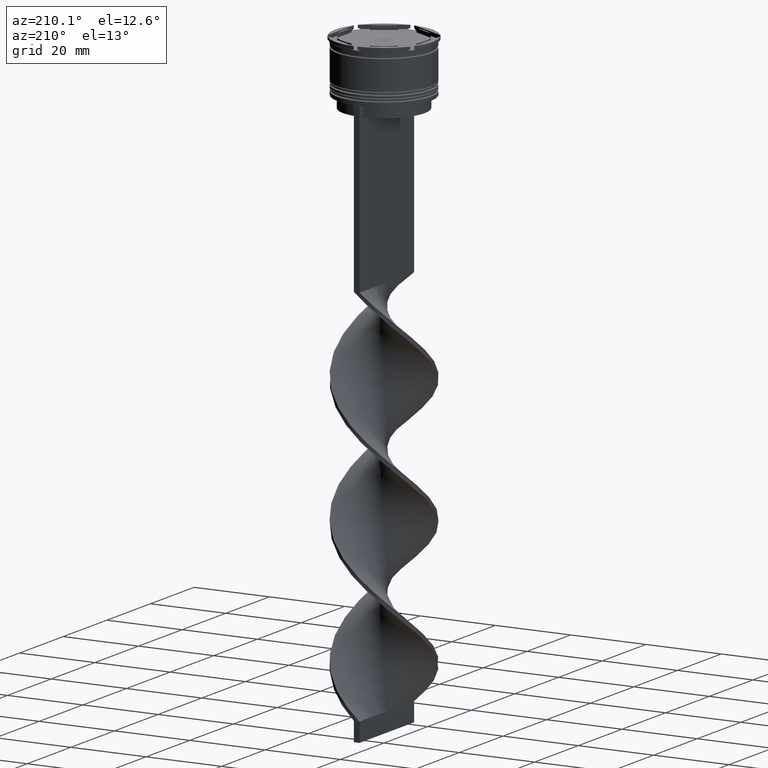
[diagram: clean part render]
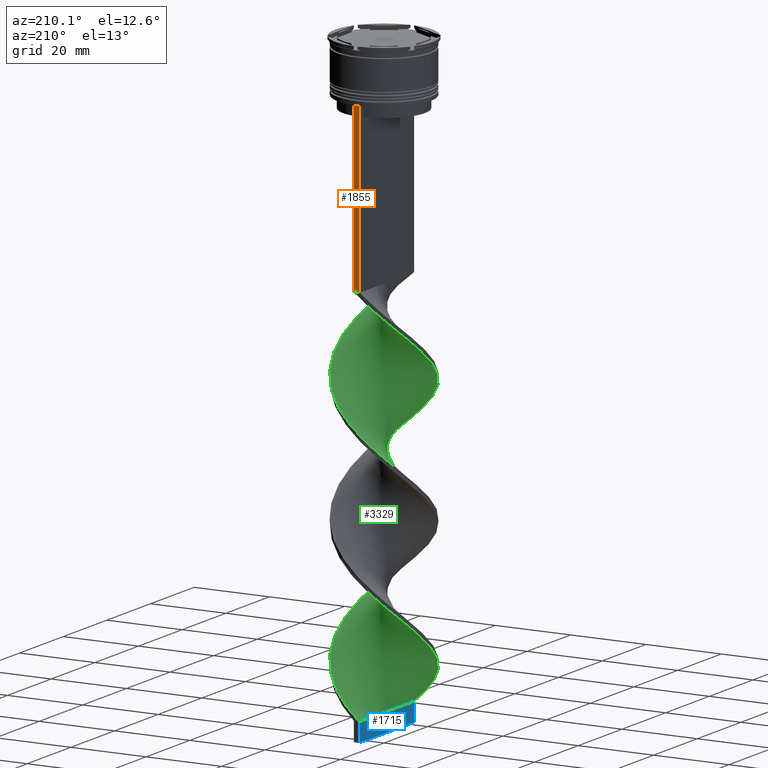
[diagram: same view with three faces highlighted in distinct colors, each labeled with its STEP entity id]
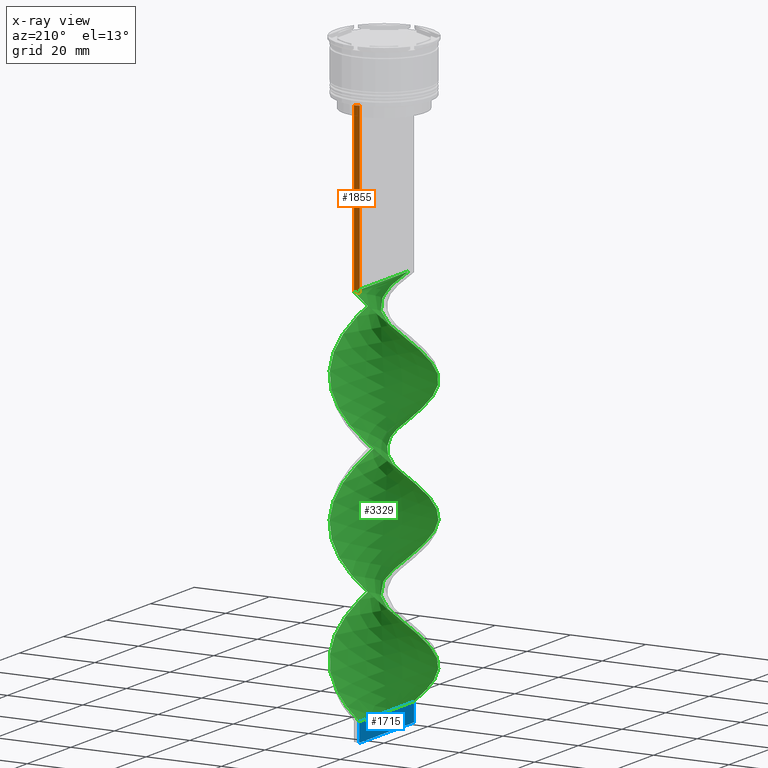
[diagram: x-ray of the same camera — body ghosted, the three highlighted faces saturated]
A machine part, auxiliary view with three faces highlighted in distinct colors.
The next image is the same camera in x-ray (body ghosted, the three faces saturated) — at least one of them is partly hidden behind the body in this view.
Their STEP definitions:

[orange] entity #1855 — the highlighted planar face has unit normal (0, -1, -0).
#38 = VECTOR ( 'NONE', #993, 1000.000000000000000 ) ;
#133 = VERTEX_POINT ( 'NONE', #1822 ) ;
#249 = CARTESIAN_POINT ( 'NONE',  ( 0.7500000000000002220, 12.50000000000000000, -58.00000000000000000 ) ) ;
#298 = CARTESIAN_POINT ( 'NONE',  ( 0.7500000000000002220, 12.50000000000000000, -14.00000000000000178 ) ) ;
#630 = ORIENTED_EDGE ( 'NONE', *, *, #4074, .F. ) ;
#694 = VERTEX_POINT ( 'NONE', #4144 ) ;
#742 = LINE ( 'NONE', #2231, #38 ) ;
#866 = CARTESIAN_POINT ( 'NONE',  ( 0.7500000000000002220, 12.50000000000000000, 11.04495957273638673 ) ) ;
#993 = DIRECTION ( 'NONE',  ( 0.000000000000000000, 0.000000000000000000, -1.000000000000000000 ) ) ;
#1085 = VECTOR ( 'NONE', #2838, 1000.000000000000000 ) ;
#1105 = CARTESIAN_POINT ( 'NONE',  ( 0.7500000000000002220, 12.50000000000000000, 11.04495957273638673 ) ) ;
#1237 = CARTESIAN_POINT ( 'NONE',  ( 0.7500000000000002220, 12.50000000000000000, -14.00000000000000178 ) ) ;
#1347 = CARTESIAN_POINT ( 'NONE',  ( -0.7499999999999997780, 12.50000000000000000, -58.00000000000000000 ) ) ;
#1447 = FACE_OUTER_BOUND ( 'NONE', #3064, .T. ) ;
#1642 = ORIENTED_EDGE ( 'NONE', *, *, #2085, .T. ) ;
#1822 = CARTESIAN_POINT ( 'NONE',  ( 0.7500000000000002220, 12.50000000000000000, -58.00000000000000000 ) ) ;
#1855 = ADVANCED_FACE ( 'NONE', ( #1447 ), #2446, .F. ) ;
#1939 = VECTOR ( 'NONE', #2305, 1000.000000000000000 ) ;
#2085 = EDGE_CURVE ( 'NONE', #3859, #133, #2389, .T. ) ;
#2113 = VERTEX_POINT ( 'NONE', #1347 ) ;
#2125 = DIRECTION ( 'NONE',  ( 0.000000000000000000, -1.000000000000000000, -0.000000000000000000 ) ) ;
#2231 = CARTESIAN_POINT ( 'NONE',  ( -0.7499999999999997780, 12.50000000000000000, 11.04495957273638673 ) ) ;
#2305 = DIRECTION ( 'NONE',  ( 0.000000000000000000, 0.000000000000000000, -1.000000000000000000 ) ) ;
#2389 = LINE ( 'NONE', #1105, #1939 ) ;
#2409 = EDGE_CURVE ( 'NONE', #694, #3859, #3157, .T. ) ;
#2446 = PLANE ( 'NONE',  #3086 ) ;
#2838 = DIRECTION ( 'NONE',  ( 1.000000000000000000, 0.000000000000000000, 0.000000000000000000 ) ) ;
#2874 = LINE ( 'NONE', #249, #3907 ) ;
#3064 = EDGE_LOOP ( 'NONE', ( #630, #3376, #1642, #4015 ) ) ;
#3086 = AXIS2_PLACEMENT_3D ( 'NONE', #866, #2125, #3413 ) ;
#3157 = LINE ( 'NONE', #298, #1085 ) ;
#3376 = ORIENTED_EDGE ( 'NONE', *, *, #2409, .T. ) ;
#3413 = DIRECTION ( 'NONE',  ( 0.000000000000000000, 0.000000000000000000, -1.000000000000000000 ) ) ;
#3431 = DIRECTION ( 'NONE',  ( -1.000000000000000000, 0.000000000000000000, 0.000000000000000000 ) ) ;
#3466 = EDGE_CURVE ( 'NONE', #133, #2113, #2874, .T. ) ;
#3859 = VERTEX_POINT ( 'NONE', #1237 ) ;
#3907 = VECTOR ( 'NONE', #3431, 1000.000000000000000 ) ;
#4015 = ORIENTED_EDGE ( 'NONE', *, *, #3466, .T. ) ;
#4074 = EDGE_CURVE ( 'NONE', #694, #2113, #742, .T. ) ;
#4144 = CARTESIAN_POINT ( 'NONE',  ( -0.7499999999999997780, 12.50000000000000000, -14.00000000000000178 ) ) ;

[blue] entity #1715 — the highlighted planar face has unit normal (1, -0, 0).
#19 = DIRECTION ( 'NONE',  ( 1.000000000000000000, -1.214306433183764966E-16, 0.000000000000000000 ) ) ;
#44 = FACE_OUTER_BOUND ( 'NONE', #1120, .T. ) ;
#136 = CARTESIAN_POINT ( 'NONE',  ( -0.7500000000000017764, -12.50000000000000000, -164.0000000000000000 ) ) ;
#433 = CARTESIAN_POINT ( 'NONE',  ( -0.7499999999999986677, 12.50000000000000000, -164.0000000000000000 ) ) ;
#546 = EDGE_CURVE ( 'NONE', #944, #1687, #2700, .T. ) ;
#753 = ORIENTED_EDGE ( 'NONE', *, *, #3370, .T. ) ;
#856 = B_SPLINE_CURVE_WITH_KNOTS ( 'NONE', 3,
 ( #1631, #2628, #3284, #3246 ),
 .UNSPECIFIED., .F., .F.,
 ( 4, 4 ),
 ( 0.000000000000000000, 1.000000000000000000 ),
 .UNSPECIFIED. ) ;
#944 = VERTEX_POINT ( 'NONE', #1412 ) ;
#1082 = ORIENTED_EDGE ( 'NONE', *, *, #3724, .F. ) ;
#1120 = EDGE_LOOP ( 'NONE', ( #753, #1082, #3168, #2823 ) ) ;
#1141 = CARTESIAN_POINT ( 'NONE',  ( -0.7500000000000017764, -12.50000000000000000, -159.0000000000000000 ) ) ;
#1412 = CARTESIAN_POINT ( 'NONE',  ( -0.7500000000000017764, -12.50000000000000000, -164.0000000000000000 ) ) ;
#1454 = CARTESIAN_POINT ( 'NONE',  ( -0.7499999999999986677, 12.50000000000000000, -164.0000000000000000 ) ) ;
#1532 = VERTEX_POINT ( 'NONE', #1861 ) ;
#1546 = AXIS2_PLACEMENT_3D ( 'NONE', #136, #19, #3970 ) ;
#1631 = CARTESIAN_POINT ( 'NONE',  ( -0.7500000000000017764, -12.50000000000000000, -159.0000000000000000 ) ) ;
#1687 = VERTEX_POINT ( 'NONE', #433 ) ;
#1715 = ADVANCED_FACE ( 'NONE', ( #44 ), #2215, .F. ) ;
#1765 = LINE ( 'NONE', #1454, #3766 ) ;
#1861 = CARTESIAN_POINT ( 'NONE',  ( -0.7499999999999986677, 12.50000000000000000, -159.0000000000000000 ) ) ;
#2176 = VERTEX_POINT ( 'NONE', #1141 ) ;
#2215 = PLANE ( 'NONE',  #1546 ) ;
#2376 = CARTESIAN_POINT ( 'NONE',  ( -0.7500000000000017764, -12.50000000000000000, -164.0000000000000000 ) ) ;
#2628 = CARTESIAN_POINT ( 'NONE',  ( -0.7500000000000007772, -4.166666666666667851, -159.0000000000000000 ) ) ;
#2700 = LINE ( 'NONE', #3669, #3281 ) ;
#2726 = DIRECTION ( 'NONE',  ( -0.000000000000000000, -0.000000000000000000, 1.000000000000000000 ) ) ;
#2774 = LINE ( 'NONE', #2376, #3973 ) ;
#2789 = EDGE_CURVE ( 'NONE', #944, #2176, #2774, .T. ) ;
#2823 = ORIENTED_EDGE ( 'NONE', *, *, #2789, .T. ) ;
#3168 = ORIENTED_EDGE ( 'NONE', *, *, #546, .F. ) ;
#3246 = CARTESIAN_POINT ( 'NONE',  ( -0.7499999999999986677, 12.50000000000000000, -159.0000000000000000 ) ) ;
#3281 = VECTOR ( 'NONE', #3711, 1000.000000000000000 ) ;
#3284 = CARTESIAN_POINT ( 'NONE',  ( -0.7499999999999996669, 4.166666666666667851, -159.0000000000000000 ) ) ;
#3370 = EDGE_CURVE ( 'NONE', #2176, #1532, #856, .T. ) ;
#3391 = DIRECTION ( 'NONE',  ( -0.000000000000000000, -0.000000000000000000, 1.000000000000000000 ) ) ;
#3669 = CARTESIAN_POINT ( 'NONE',  ( -0.7500000000000017764, -12.50000000000000000, -164.0000000000000000 ) ) ;
#3711 = DIRECTION ( 'NONE',  ( 1.214306433183764966E-16, 1.000000000000000000, 0.000000000000000000 ) ) ;
#3724 = EDGE_CURVE ( 'NONE', #1687, #1532, #1765, .T. ) ;
#3766 = VECTOR ( 'NONE', #2726, 1000.000000000000000 ) ;
#3970 = DIRECTION ( 'NONE',  ( 1.214306433183764966E-16, 1.000000000000000000, 0.000000000000000000 ) ) ;
#3973 = VECTOR ( 'NONE', #3391, 1000.000000000000000 ) ;

[green] entity #3329 — the highlighted face is a freeform B-spline surface patch.
#5 = CARTESIAN_POINT ( 'NONE',  ( -7.849775853840630369, -9.845090710256190647, -117.4777777777777885 ) ) ;
#31 = CARTESIAN_POINT ( 'NONE',  ( 12.50992003955415655, -0.5607143693194658329, -141.0444444444444514 ) ) ;
#47 = CARTESIAN_POINT ( 'NONE',  ( 12.13740119476140045, 3.350863215071107515, -77.07777777777778283 ) ) ;
#63 = CARTESIAN_POINT ( 'NONE',  ( 6.937523532635171186, -10.50788081788356187, -63.61111111111112137 ) ) ;
#69 = CARTESIAN_POINT ( 'NONE',  ( 12.13740119476139867, -3.350863215071115953, -106.2555555555555742 ) ) ;
#76 = CARTESIAN_POINT ( 'NONE',  ( -5.631329961908784654, 11.26201202755620479, -63.61111111111112137 ) ) ;
#82 = CARTESIAN_POINT ( 'NONE',  ( 2.063802940820955723, -12.42117182355074334, -126.4555555555555770 ) ) ;
#94 = CARTESIAN_POINT ( 'NONE',  ( -6.937523532635175627, -10.50788081788355832, -86.05555555555557135 ) ) ;
#102 = CARTESIAN_POINT ( 'NONE',  ( -9.791158273236575837, -7.806773960377678456, -82.68888888888889710 ) ) ;
#106 = CARTESIAN_POINT ( 'NONE',  ( -1.865285434671644094, -12.38277877728589083, -123.0888888888888886 ) ) ;
#115 = CARTESIAN_POINT ( 'NONE',  ( 10.45031754730548101, -6.899519052838334332, -102.8888888888888857 ) ) ;
#121 = CARTESIAN_POINT ( 'NONE',  ( -9.725148873555948370, 7.997891686931351884, -135.4333333333333371 ) ) ;
#125 = CARTESIAN_POINT ( 'NONE',  ( -0.7499999999999986677, 12.50000000000000000, -91.66666666666667140 ) ) ;
#133 = VERTEX_POINT ( 'NONE', #1822 ) ;
#135 = CARTESIAN_POINT ( 'NONE',  ( -8.787462363698281820, 8.921491198593773930, -66.97777777777777430 ) ) ;
#139 = CARTESIAN_POINT ( 'NONE',  ( 12.35312734465267503, -2.052497212371882984, -107.3777777777777942 ) ) ;
#144 = CARTESIAN_POINT ( 'NONE',  ( 12.35312734465267859, 2.052497212371872326, -143.2888888888889198 ) ) ;
#158 = FACE_OUTER_BOUND ( 'NONE', #2612, .T. ) ;
#162 =( BOUNDED_CURVE ( )  B_SPLINE_CURVE ( 2, ( #1278, #3842, #2582, #3545, #974, #76, #3867, #2233, #996, #2254, #1946, #375, #3886, #1016, #3570, #708, #1968, #3254, #394, #2047, #2723, #1451, #102, #1409, #1072, #1431, #3672, #3655, #3273, #771, #3633, #2641, #806, #3949, #1678, #3336, #462, #1738, #164, #1721, #2026, #2067, #1388, #502, #139, #4071, #3361, #3041, #2318, #3609, #744, #2703, #184, #2466, #2958, #1116, #1192, #3297, #3748, #2680, #2383, #887, #413, #3319, #1705, #1366, #3932, #439, #2976, #121, #2658, #2340, #1097, #1568, #254, #335, #652, #1524, #4131, #1246, #294, #315, #2222, #2181, #2834, #3177, #938, #2857, #590, #1228, #3804 ),
 .UNSPECIFIED., .F., .T. ) 
 B_SPLINE_CURVE_WITH_KNOTS ( ( 3, 2, 2, 2, 2, 2, 2, 2, 2, 2, 2, 2, 2, 2, 2, 2, 2, 2, 2, 2, 2, 2, 2, 2, 2, 2, 2, 2, 2, 2, 2, 2, 2, 2, 2, 2, 2, 2, 2, 2, 2, 2, 2, 2, 2, 3 ),
 ( 0.000000000000000000, 0.01666666666666666644, 0.03333333333333333287, 0.05000000000000000971, 0.06666666666666666574, 0.08333333333333332871, 0.1000000000000000194, 0.1166666666666666546, 0.1333333333333333315, 0.1499999999999999944, 0.1666666666666666574, 0.1833333333333333204, 0.2000000000000000389, 0.2166666666666666741, 0.2333333333333333093, 0.2500000000000000000, 0.2666666666666666630, 0.2833333333333333259, 0.2999999999999999889, 0.3166666666666666519, 0.3333333333333333148, 0.3499999999999999223, 0.3666666666666666408, 0.3833333333333333592, 0.4000000000000000777, 0.4166666666666666852, 0.4333333333333333481, 0.4500000000000000111, 0.4666666666666666186, 0.4833333333333333370, 0.5000000000000000000, 0.5166666666666667185, 0.5333333333333333259, 0.5500000000000000444, 0.5666666666666666519, 0.5833333333333333703, 0.5999999999999999778, 0.6166666666666666963, 0.6333333333333333037, 0.6500000000000000222, 0.6666666666666666297, 0.6833333333333332371, 0.6999999999999998446, 0.7166666666666666741, 0.7333333333333332815, 0.7500000000000000000 ),
 .UNSPECIFIED. ) 
 CURVE ( )  GEOMETRIC_REPRESENTATION_ITEM ( )  RATIONAL_B_SPLINE_CURVE ( ( 1.000000000000000000, 0.9945218953682732899, 1.000000000000000000, 0.9945218953682732899, 1.000000000000000000, 0.9945218953682732899, 1.000000000000000000, 0.9945218953682732899, 1.000000000000000000, 0.9945218953682732899, 1.000000000000000000, 0.9945218953682732899, 1.000000000000000000, 0.9945218953682732899, 1.000000000000000000, 0.9945218953682732899, 1.000000000000000000, 0.9945218953682732899, 1.000000000000000000, 0.9945218953682732899, 1.000000000000000000, 0.9945218953682732899, 1.000000000000000000, 0.9945218953682732899, 1.000000000000000000, 0.9945218953682732899, 1.000000000000000000, 0.9945218953682732899, 1.000000000000000000, 0.9945218953682732899, 1.000000000000000000, 0.9945218953682732899, 1.000000000000000000, 0.9945218953682732899, 1.000000000000000000, 0.9945218953682732899, 1.000000000000000000, 0.9945218953682732899, 1.000000000000000000, 0.9945218953682732899, 1.000000000000000000, 0.9945218953682732899, 1.000000000000000000, 0.9945218953682732899, 1.000000000000000000, 0.9945218953682732899, 1.000000000000000000, 0.9945218953682732899, 1.000000000000000000, 0.9945218953682732899, 1.000000000000000000, 0.9945218953682732899, 1.000000000000000000, 0.9945218953682732899, 1.000000000000000000, 0.9945218953682732899, 1.000000000000000000, 0.9945218953682732899, 1.000000000000000000, 0.9945218953682732899, 1.000000000000000000, 0.9945218953682732899, 1.000000000000000000, 0.9945218953682732899, 1.000000000000000000, 0.9945218953682732899, 1.000000000000000000, 0.9945218953682732899, 1.000000000000000000, 0.9945218953682732899, 1.000000000000000000, 0.9945218953682732899, 1.000000000000000000, 0.9945218953682732899, 1.000000000000000000, 0.9945218953682732899, 1.000000000000000000, 0.9945218953682732899, 1.000000000000000000, 0.9945218953682732899, 1.000000000000000000, 0.9945218953682732899, 1.000000000000000000, 0.9945218953682732899, 1.000000000000000000, 0.9945218953682732899, 1.000000000000000000, 0.9945218953682732899, 1.000000000000000000, 0.9945218953682732899, 1.000000000000000000 ) ) 
 REPRESENTATION_ITEM ( '' )  );
#164 = CARTESIAN_POINT ( 'NONE',  ( 8.787462363698281820, -8.921491198593777483, -100.6444444444444599 ) ) ;
#169 = CARTESIAN_POINT ( 'NONE',  ( 0.5638029408209590532, 12.57882817644925844, -157.8777777777777942 ) ) ;
#179 = CARTESIAN_POINT ( 'NONE',  ( -11.20031754730548457, -5.600480947161668333, -147.7777777777777715 ) ) ;
#184 = CARTESIAN_POINT ( 'NONE',  ( 9.791158273236577614, 7.806773960377676680, -116.3555555555555685 ) ) ;
#195 = CARTESIAN_POINT ( 'NONE',  ( -5.631329961908784654, 11.26201202755620123, -130.9444444444444287 ) ) ;
#198 = CARTESIAN_POINT ( 'NONE',  ( 0.7500000000000002220, -12.50000000000000000, -58.00000000000000000 ) ) ;
#214 = CARTESIAN_POINT ( 'NONE',  ( -12.45098658456435992, -1.875559948311561920, -144.4111111111111541 ) ) ;
#234 = CARTESIAN_POINT ( 'NONE',  ( -1.865285434671636988, 12.38277877728589260, -127.5777777777777828 ) ) ;
#254 = CARTESIAN_POINT ( 'NONE',  ( -12.35312734465267681, 2.052497212371875879, -141.0444444444444514 ) ) ;
#255 = CARTESIAN_POINT ( 'NONE',  ( 11.78895181437690276, -4.423280136619393232, -70.34444444444443434 ) ) ;
#271 = CARTESIAN_POINT ( 'NONE',  ( -10.45031754730548812, -6.899519052838321009, -114.1111111111111285 ) ) ;
#294 = CARTESIAN_POINT ( 'NONE',  ( -11.20031754730548457, -5.600480947161668333, -147.7777777777777715 ) ) ;
#296 = CARTESIAN_POINT ( 'NONE',  ( -12.50992003955415832, 0.5607143693194728273, -107.3777777777777942 ) ) ;
#315 = CARTESIAN_POINT ( 'NONE',  ( -10.61168328023406637, -6.777681757703948762, -148.8999999999999773 ) ) ;
#317 = CARTESIAN_POINT ( 'NONE',  ( 11.65644370790820972, 4.576004816908207928, -145.5333333333333599 ) ) ;
#335 = CARTESIAN_POINT ( 'NONE',  ( -12.56885349454395495, 0.7541312096726383585, -142.1666666666666856 ) ) ;
#337 = CARTESIAN_POINT ( 'NONE',  ( 4.601210730723737541, -11.72065065856775945, -128.6999999999999886 ) ) ;
#357 = CARTESIAN_POINT ( 'NONE',  ( -11.17548622105502254, -5.801146418745300792, -112.9888888888888943 ) ) ;
#375 = CARTESIAN_POINT ( 'NONE',  ( -11.17548622105502076, 5.801146418745308786, -70.34444444444444855 ) ) ;
#378 = CARTESIAN_POINT ( 'NONE',  ( -6.740552907874707067, -10.55355136890619860, -118.6000000000000085 ) ) ;
#390 = CARTESIAN_POINT ( 'NONE',  ( 8.787462363698281820, -8.921491198593777483, -100.6444444444444599 ) ) ;
#394 = CARTESIAN_POINT ( 'NONE',  ( -12.11996919947063311, -3.149420042465476577, -78.20000000000000284 ) ) ;
#399 = CARTESIAN_POINT ( 'NONE',  ( 3.332506835772345966, -12.07091124105925317, -60.24444444444444713 ) ) ;
#409 = CARTESIAN_POINT ( 'NONE',  ( -12.11996919947063311, -3.149420042465476577, -78.20000000000000284 ) ) ;
#413 = CARTESIAN_POINT ( 'NONE',  ( -1.865285434671636988, 12.38277877728589260, -127.5777777777777828 ) ) ;
#419 = CARTESIAN_POINT ( 'NONE',  ( -10.45031754730548812, -6.899519052838321009, -114.1111111111111285 ) ) ;
#431 = CARTESIAN_POINT ( 'NONE',  ( -3.332506835772350851, -12.07091124105925140, -89.42222222222223138 ) ) ;
#439 = CARTESIAN_POINT ( 'NONE',  ( -7.849775853840621487, 9.845090710256194200, -133.1888888888889255 ) ) ;
#444 = CARTESIAN_POINT ( 'NONE',  ( 6.740552907874705291, 10.55355136890619860, -84.93333333333333712 ) ) ;
#455 = CARTESIAN_POINT ( 'NONE',  ( -12.45098658456435992, -1.875559948311561920, -77.07777777777778283 ) ) ;
#462 = CARTESIAN_POINT ( 'NONE',  ( 6.740552907874702626, -10.55355136890619860, -98.40000000000001990 ) ) ;
#468 = CARTESIAN_POINT ( 'NONE',  ( 7.954078399437126023, -9.671873490467488566, -132.0666666666666629 ) ) ;
#475 = CARTESIAN_POINT ( 'NONE',  ( 3.166767928522317810, -12.18672937812252677, -95.03333333333331723 ) ) ;
#494 = CARTESIAN_POINT ( 'NONE',  ( 6.740552907874705291, 10.55355136890619860, -84.93333333333333712 ) ) ;
#502 = CARTESIAN_POINT ( 'NONE',  ( 12.13740119476139867, -3.350863215071115953, -106.2555555555555742 ) ) ;
#517 = CARTESIAN_POINT ( 'NONE',  ( 5.631329961908789983, 11.26201202755619768, -86.05555555555557135 ) ) ;
#533 = CARTESIAN_POINT ( 'NONE',  ( 4.399048945215554340, 11.72437070283936045, -87.17777777777779136 ) ) ;
#553 = CARTESIAN_POINT ( 'NONE',  ( 12.56885349454395495, 0.7541312096726368042, -74.83333333333334281 ) ) ;
#561 = EDGE_CURVE ( 'NONE', #1945, #133, #767, .T. ) ;
#577 = CARTESIAN_POINT ( 'NONE',  ( 12.11996919947063134, -3.149420042465478353, -71.46666666666668277 ) ) ;
#590 = CARTESIAN_POINT ( 'NONE',  ( -3.332506835772350851, -12.07091124105925140, -156.7555555555555600 ) ) ;
#591 = CARTESIAN_POINT ( 'NONE',  ( -9.791158273236570508, 7.806773960377685562, -100.6444444444444599 ) ) ;
#606 = CARTESIAN_POINT ( 'NONE',  ( 5.769367131679453031, -11.11426573822566155, -129.8222222222222229 ) ) ;
#627 = CARTESIAN_POINT ( 'NONE',  ( 2.063802940820955723, -12.42117182355074334, -59.12222222222222712 ) ) ;
#633 = CARTESIAN_POINT ( 'NONE',  ( -11.78895181437689743, 4.423280136619401226, -104.0111111111111200 ) ) ;
#652 = CARTESIAN_POINT ( 'NONE',  ( -12.50992003955415832, -0.5607143693194613920, -143.2888888888889198 ) ) ;
#666 = CARTESIAN_POINT ( 'NONE',  ( 4.601210730723736653, -11.72065065856775767, -61.36666666666666003 ) ) ;
#671 = CARTESIAN_POINT ( 'NONE',  ( 12.45098658456436169, -1.875559948311565917, -139.9222222222222172 ) ) ;
#689 = CARTESIAN_POINT ( 'NONE',  ( 9.725148873555948370, 7.997891686931350108, -81.56666666666666288 ) ) ;
#701 = CARTESIAN_POINT ( 'NONE',  ( -0.7500000000000017764, -12.50000000000000000, -91.66666666666667140 ) ) ;
#708 = CARTESIAN_POINT ( 'NONE',  ( -12.56885349454395495, 0.7541312096726383585, -74.83333333333332860 ) ) ;
#712 = CARTESIAN_POINT ( 'NONE',  ( 12.45098658456436169, -1.875559948311565694, -72.58888888888890278 ) ) ;
#720 = CARTESIAN_POINT ( 'NONE',  ( -11.78895181437690276, -4.423280136619389680, -79.32222222222222285 ) ) ;
#727 = CARTESIAN_POINT ( 'NONE',  ( 6.937523532635171186, -10.50788081788356187, -130.9444444444444571 ) ) ;
#737 = CARTESIAN_POINT ( 'NONE',  ( -11.65644370790820794, 4.576004816908208817, -71.46666666666668277 ) ) ;
#744 = CARTESIAN_POINT ( 'NONE',  ( 11.20031754730548812, 5.600480947161662115, -114.1111111111111285 ) ) ;
#750 = CARTESIAN_POINT ( 'NONE',  ( 11.65644370790820972, 4.576004816908207928, -78.20000000000000284 ) ) ;
#761 = CARTESIAN_POINT ( 'NONE',  ( 2.063802940820966825, 12.42117182355074334, -124.2111111111111370 ) ) ;
#767 = LINE ( 'NONE', #198, #1735 ) ;
#771 = CARTESIAN_POINT ( 'NONE',  ( -2.063802940820959275, -12.42117182355074334, -90.54444444444445139 ) ) ;
#786 = CARTESIAN_POINT ( 'NONE',  ( -1.865285434671636988, 12.38277877728589260, -60.24444444444444713 ) ) ;
#801 = CARTESIAN_POINT ( 'NONE',  ( 12.13740119476140045, 3.350863215071107515, -77.07777777777778283 ) ) ;
#806 = CARTESIAN_POINT ( 'NONE',  ( 1.865285434671633880, -12.38277877728589260, -93.91111111111111143 ) ) ;
#823 = CARTESIAN_POINT ( 'NONE',  ( -9.725148873555946594, 7.997891686931353661, -135.4333333333333371 ) ) ;
#835 = CARTESIAN_POINT ( 'NONE',  ( 11.78895181437690276, -4.423280136619393232, -137.6777777777777487 ) ) ;
#845 = CARTESIAN_POINT ( 'NONE',  ( -2.063802940820959275, -12.42117182355074334, -157.8777777777777942 ) ) ;
#856 = B_SPLINE_CURVE_WITH_KNOTS ( 'NONE', 3,
 ( #1631, #2628, #3284, #3246 ),
 .UNSPECIFIED., .F., .F.,
 ( 4, 4 ),
 ( 0.000000000000000000, 1.000000000000000000 ),
 .UNSPECIFIED. ) ;
#863 = CARTESIAN_POINT ( 'NONE',  ( 10.61168328023406815, -6.777681757703950538, -68.10000000000002274 ) ) ;
#885 = CARTESIAN_POINT ( 'NONE',  ( -11.65644370790820794, 4.576004816908208817, -138.8000000000000114 ) ) ;
#887 = CARTESIAN_POINT ( 'NONE',  ( -0.5638029408209555005, 12.57882817644925844, -126.4555555555555770 ) ) ;
#908 = CARTESIAN_POINT ( 'NONE',  ( 0.5638029408209590532, 12.57882817644926021, -157.8777777777777942 ) ) ;
#938 = CARTESIAN_POINT ( 'NONE',  ( -5.769367131679456584, -11.11426573822565977, -154.5111111111111200 ) ) ;
#941 = CARTESIAN_POINT ( 'NONE',  ( 2.063802940820956167, -12.42117182355074334, -126.4555555555555628 ) ) ;
#964 = CARTESIAN_POINT ( 'NONE',  ( -0.5638029408209662696, -12.57882817644926021, -124.2111111111111370 ) ) ;
#974 = CARTESIAN_POINT ( 'NONE',  ( -4.399048945215550788, 11.72437070283936222, -62.48888888888889426 ) ) ;
#980 = CARTESIAN_POINT ( 'NONE',  ( -5.769367131679449479, 11.11426573822566333, -96.15555555555556566 ) ) ;
#985 = CARTESIAN_POINT ( 'NONE',  ( -5.631329961908790871, -11.26201202755619768, -119.7222222222222143 ) ) ;
#996 = CARTESIAN_POINT ( 'NONE',  ( -8.787462363698281820, 8.921491198593773930, -66.97777777777777430 ) ) ;
#1001 = CARTESIAN_POINT ( 'NONE',  ( -10.61168328023406460, 6.777681757703952314, -101.7666666666666515 ) ) ;
#1009 = CARTESIAN_POINT ( 'NONE',  ( -6.740552907874703514, 10.55355136890620038, -64.73333333333333428 ) ) ;
#1016 = CARTESIAN_POINT ( 'NONE',  ( -12.13740119476139867, 3.350863215071111512, -72.58888888888890278 ) ) ;
#1022 = CARTESIAN_POINT ( 'NONE',  ( -6.937523532635168522, 10.50788081788356365, -97.27777777777779988 ) ) ;
#1031 = CARTESIAN_POINT ( 'NONE',  ( 12.45098658456436169, 1.875559948311554370, -110.7444444444444542 ) ) ;
#1039 = CARTESIAN_POINT ( 'NONE',  ( -4.399048945215561446, -11.72437070283935689, -120.8444444444444485 ) ) ;
#1048 = CARTESIAN_POINT ( 'NONE',  ( 12.35312734465267503, -2.052497212371882984, -107.3777777777777942 ) ) ;
#1056 = CARTESIAN_POINT ( 'NONE',  ( 12.56885349454395495, 0.7541312096726368042, -74.83333333333332860 ) ) ;
#1065 = CARTESIAN_POINT ( 'NONE',  ( 5.769367131679463689, 11.11426573822565622, -120.8444444444444485 ) ) ;
#1072 = CARTESIAN_POINT ( 'NONE',  ( -7.954078399437126912, -9.671873490467486789, -84.93333333333333712 ) ) ;
#1078 = CARTESIAN_POINT ( 'NONE',  ( 9.791158273236570508, -7.806773960377682009, -134.3111111111111313 ) ) ;
#1090 = CARTESIAN_POINT ( 'NONE',  ( -4.399048945215550788, 11.72437070283936222, -62.48888888888889426 ) ) ;
#1097 = CARTESIAN_POINT ( 'NONE',  ( -11.65644370790820794, 4.576004816908208817, -138.8000000000000114 ) ) ;
#1111 = CARTESIAN_POINT ( 'NONE',  ( -7.954078399437126912, -9.671873490467486789, -152.2666666666666799 ) ) ;
#1116 = CARTESIAN_POINT ( 'NONE',  ( 6.937523532635175627, 10.50788081788355832, -119.7222222222222143 ) ) ;
#1129 = CARTESIAN_POINT ( 'NONE',  ( 8.970633266239079973, -8.835866163051415256, -65.85555555555555429 ) ) ;
#1141 = CARTESIAN_POINT ( 'NONE',  ( -0.7500000000000017764, -12.50000000000000000, -159.0000000000000000 ) ) ;
#1149 = CARTESIAN_POINT ( 'NONE',  ( -4.399048945215550788, 11.72437070283936222, -129.8222222222222229 ) ) ;
#1159 = CARTESIAN_POINT ( 'NONE',  ( 8.970633266239079973, -8.835866163051415256, -133.1888888888889255 ) ) ;
#1171 = CARTESIAN_POINT ( 'NONE',  ( -3.332506835772342857, 12.07091124105925317, -93.91111111111111143 ) ) ;
#1191 = CARTESIAN_POINT ( 'NONE',  ( -12.35312734465267681, 2.052497212371875879, -141.0444444444444514 ) ) ;
#1192 = CARTESIAN_POINT ( 'NONE',  ( 5.769367131679463689, 11.11426573822565622, -120.8444444444444485 ) ) ;
#1209 = CARTESIAN_POINT ( 'NONE',  ( 3.332506835772345966, -12.07091124105925317, -127.5777777777777828 ) ) ;
#1228 = CARTESIAN_POINT ( 'NONE',  ( -2.063802940820959275, -12.42117182355074334, -157.8777777777777942 ) ) ;
#1246 = CARTESIAN_POINT ( 'NONE',  ( -11.78895181437690276, -4.423280136619389680, -146.6555555555555657 ) ) ;
#1248 = CARTESIAN_POINT ( 'NONE',  ( -11.20031754730548101, 5.600480947161677214, -102.8888888888888857 ) ) ;
#1278 = CARTESIAN_POINT ( 'NONE',  ( 0.7500000000000002220, 12.50000000000000000, -58.00000000000000000 ) ) ;
#1291 = CARTESIAN_POINT ( 'NONE',  ( 12.56885349454395495, 0.7541312096726368042, -142.1666666666666856 ) ) ;
#1308 = CARTESIAN_POINT ( 'NONE',  ( -2.063802940820951726, 12.42117182355074689, -92.78888888888889142 ) ) ;
#1325 = CARTESIAN_POINT ( 'NONE',  ( -0.5638029408209662696, -12.57882817644925844, -124.2111111111111370 ) ) ;
#1334 = CARTESIAN_POINT ( 'NONE',  ( -7.849775853840620599, 9.845090710256195976, -65.85555555555555429 ) ) ;
#1345 = CARTESIAN_POINT ( 'NONE',  ( 3.332506835772345966, -12.07091124105925317, -127.5777777777777828 ) ) ;
#1359 = CARTESIAN_POINT ( 'NONE',  ( -3.166767928522319142, 12.18672937812252499, -61.36666666666666003 ) ) ;
#1366 = CARTESIAN_POINT ( 'NONE',  ( -5.631329961908784654, 11.26201202755620479, -130.9444444444444571 ) ) ;
#1371 = CARTESIAN_POINT ( 'NONE',  ( 1.865285434671642317, 12.38277877728589083, -89.42222222222223138 ) ) ;
#1373 = EDGE_CURVE ( 'NONE', #133, #2176, #162, .T. ) ;
#1381 = CARTESIAN_POINT ( 'NONE',  ( 12.56885349454395495, -0.7541312096726399128, -108.5000000000000000 ) ) ;
#1388 = CARTESIAN_POINT ( 'NONE',  ( 11.65644370790820794, -4.576004816908210593, -105.1333333333333400 ) ) ;
#1394 = CARTESIAN_POINT ( 'NONE',  ( -12.56885349454395495, -0.7541312096726352499, -108.5000000000000000 ) ) ;
#1403 = CARTESIAN_POINT ( 'NONE',  ( -10.61168328023406815, -6.777681757703948762, -81.56666666666664867 ) ) ;
#1409 = CARTESIAN_POINT ( 'NONE',  ( -8.970633266239079973, -8.835866163051411704, -83.81111111111111711 ) ) ;
#1424 = CARTESIAN_POINT ( 'NONE',  ( -4.601210730723739317, -11.72065065856775945, -88.29999999999998295 ) ) ;
#1431 = CARTESIAN_POINT ( 'NONE',  ( -6.937523532635174739, -10.50788081788355832, -86.05555555555557135 ) ) ;
#1435 = CARTESIAN_POINT ( 'NONE',  ( 11.20031754730548279, -5.600480947161672773, -136.5555555555555713 ) ) ;
#1445 = CARTESIAN_POINT ( 'NONE',  ( -4.601210730723739317, -11.72065065856775945, -155.6333333333333258 ) ) ;
#1451 = CARTESIAN_POINT ( 'NONE',  ( -10.61168328023406637, -6.777681757703948762, -81.56666666666666288 ) ) ;
#1465 = CARTESIAN_POINT ( 'NONE',  ( 2.063802940820956167, -12.42117182355074334, -59.12222222222222712 ) ) ;
#1472 = CARTESIAN_POINT ( 'NONE',  ( 12.45098658456436169, -1.875559948311565694, -139.9222222222222172 ) ) ;
#1484 = CARTESIAN_POINT ( 'NONE',  ( -2.063802940820951726, 12.42117182355074689, -92.78888888888889142 ) ) ;
#1508 = CARTESIAN_POINT ( 'NONE',  ( -8.787462363698281820, 8.921491198593773930, -134.3111111111111313 ) ) ;
#1516 = ORIENTED_EDGE ( 'NONE', *, *, #561, .F. ) ;
#1524 = CARTESIAN_POINT ( 'NONE',  ( -12.45098658456435992, -1.875559948311561920, -144.4111111111111256 ) ) ;
#1525 = CARTESIAN_POINT ( 'NONE',  ( -11.65644370790820972, -4.576004816908206152, -111.8666666666666742 ) ) ;
#1532 = VERTEX_POINT ( 'NONE', #1861 ) ;
#1545 = CARTESIAN_POINT ( 'NONE',  ( 10.45031754730548457, 6.899519052838327227, -147.7777777777777715 ) ) ;
#1568 = CARTESIAN_POINT ( 'NONE',  ( -12.13740119476139867, 3.350863215071111512, -139.9222222222222172 ) ) ;
#1570 = CARTESIAN_POINT ( 'NONE',  ( -8.787462363698288925, -8.921491198593770378, -116.3555555555555685 ) ) ;
#1585 = CARTESIAN_POINT ( 'NONE',  ( -0.7499999999999986677, 12.50000000000000000, -159.0000000000000000 ) ) ;
#1603 = CARTESIAN_POINT ( 'NONE',  ( 10.61168328023406815, -6.777681757703950538, -135.4333333333333371 ) ) ;
#1623 = CARTESIAN_POINT ( 'NONE',  ( -9.725148873555948370, -7.997891686931350108, -115.2333333333333343 ) ) ;
#1631 = CARTESIAN_POINT ( 'NONE',  ( -0.7500000000000017764, -12.50000000000000000, -159.0000000000000000 ) ) ;
#1644 = CARTESIAN_POINT ( 'NONE',  ( 9.791158273236570508, -7.806773960377682009, -66.97777777777777430 ) ) ;
#1652 = CARTESIAN_POINT ( 'NONE',  ( 11.65644370790820794, -4.576004816908210593, -105.1333333333333400 ) ) ;
#1661 = CARTESIAN_POINT ( 'NONE',  ( -5.631329961908790871, -11.26201202755619946, -119.7222222222222143 ) ) ;
#1670 = CARTESIAN_POINT ( 'NONE',  ( 7.849775853840617046, -9.845090710256195976, -99.52222222222223991 ) ) ;
#1678 = CARTESIAN_POINT ( 'NONE',  ( 4.399048945215547235, -11.72437070283936400, -96.15555555555556566 ) ) ;
#1683 = CARTESIAN_POINT ( 'NONE',  ( -8.970633266239076420, 8.835866163051417033, -99.52222222222223991 ) ) ;
#1698 = CARTESIAN_POINT ( 'NONE',  ( 10.61168328023406993, 6.777681757703947873, -115.2333333333333343 ) ) ;
#1705 = CARTESIAN_POINT ( 'NONE',  ( -4.399048945215550788, 11.72437070283936222, -129.8222222222222229 ) ) ;
#1709 = CARTESIAN_POINT ( 'NONE',  ( -9.791158273236570508, 7.806773960377685562, -100.6444444444444599 ) ) ;
#1717 = CARTESIAN_POINT ( 'NONE',  ( -9.725148873555946594, 7.997891686931353661, -68.10000000000002274 ) ) ;
#1721 = CARTESIAN_POINT ( 'NONE',  ( 9.725148873555946594, -7.997891686931353661, -101.7666666666666515 ) ) ;
#1726 = CARTESIAN_POINT ( 'NONE',  ( 10.61168328023406637, -6.777681757703950538, -135.4333333333333371 ) ) ;
#1734 = CARTESIAN_POINT ( 'NONE',  ( -12.13740119476139867, 3.350863215071111512, -72.58888888888890278 ) ) ;
#1735 = VECTOR ( 'NONE', #3054, 1000.000000000000000 ) ;
#1738 = CARTESIAN_POINT ( 'NONE',  ( 7.849775853840617934, -9.845090710256194200, -99.52222222222223991 ) ) ;
#1743 = CARTESIAN_POINT ( 'NONE',  ( 12.13740119476140045, 3.350863215071107515, -144.4111111111111256 ) ) ;
#1756 = CARTESIAN_POINT ( 'NONE',  ( -12.56885349454395495, 0.7541312096726383585, -142.1666666666666856 ) ) ;
#1772 = CARTESIAN_POINT ( 'NONE',  ( -3.166767928522319142, 12.18672937812252499, -128.6999999999999886 ) ) ;
#1791 = CARTESIAN_POINT ( 'NONE',  ( 1.865285434671642317, 12.38277877728589083, -89.42222222222223138 ) ) ;
#1816 = CARTESIAN_POINT ( 'NONE',  ( 7.849775853840625039, 9.845090710256194200, -83.81111111111111711 ) ) ;
#1822 = CARTESIAN_POINT ( 'NONE',  ( 0.7500000000000002220, 12.50000000000000000, -58.00000000000000000 ) ) ;
#1833 = CARTESIAN_POINT ( 'NONE',  ( -8.970633266239079973, -8.835866163051411704, -151.1444444444444457 ) ) ;
#1851 = CARTESIAN_POINT ( 'NONE',  ( -12.11996919947063134, 3.149420042465479241, -105.1333333333333400 ) ) ;
#1861 = CARTESIAN_POINT ( 'NONE',  ( -0.7499999999999986677, 12.50000000000000000, -159.0000000000000000 ) ) ;
#1871 = CARTESIAN_POINT ( 'NONE',  ( 8.970633266239079973, -8.835866163051415256, -133.1888888888889255 ) ) ;
#1896 = CARTESIAN_POINT ( 'NONE',  ( -12.13740119476140222, -3.350863215071100853, -110.7444444444444542 ) ) ;
#1912 = CARTESIAN_POINT ( 'NONE',  ( 7.849775853840625039, 9.845090710256194200, -151.1444444444444457 ) ) ;
#1926 = CARTESIAN_POINT ( 'NONE',  ( -11.78895181437689743, 4.423280136619400338, -104.0111111111111057 ) ) ;
#1931 = CARTESIAN_POINT ( 'NONE',  ( 12.13740119476140045, 3.350863215071107515, -144.4111111111111541 ) ) ;
#1945 = VERTEX_POINT ( 'NONE', #3351 ) ;
#1946 = CARTESIAN_POINT ( 'NONE',  ( -10.45031754730548279, 6.899519052838331667, -69.22222222222222854 ) ) ;
#1950 = CARTESIAN_POINT ( 'NONE',  ( -7.849775853840630369, -9.845090710256188871, -117.4777777777777885 ) ) ;
#1963 = CARTESIAN_POINT ( 'NONE',  ( 5.631329961908781989, -11.26201202755620479, -97.27777777777778567 ) ) ;
#1968 = CARTESIAN_POINT ( 'NONE',  ( -12.50992003955415832, -0.5607143693194613920, -75.95555555555554861 ) ) ;
#1972 = CARTESIAN_POINT ( 'NONE',  ( 10.45031754730548457, 6.899519052838327227, -80.44444444444445708 ) ) ;
#1982 = CARTESIAN_POINT ( 'NONE',  ( -8.970633266239079973, -8.835866163051411704, -83.81111111111111711 ) ) ;
#1989 = CARTESIAN_POINT ( 'NONE',  ( -12.45098658456436169, 1.875559948311569913, -106.2555555555555742 ) ) ;
#2009 = CARTESIAN_POINT ( 'NONE',  ( 8.787462363698287149, 8.921491198593770378, -82.68888888888889710 ) ) ;
#2019 = CARTESIAN_POINT ( 'NONE',  ( 0.7500000000000002220, 12.50000000000000000, -125.3333333333333570 ) ) ;
#2026 = CARTESIAN_POINT ( 'NONE',  ( 10.45031754730548101, -6.899519052838334332, -102.8888888888888857 ) ) ;
#2031 = CARTESIAN_POINT ( 'NONE',  ( 8.787462363698287149, 8.921491198593770378, -150.0222222222222115 ) ) ;
#2042 = CARTESIAN_POINT ( 'NONE',  ( 0.5638029408209505045, -12.57882817644926376, -92.78888888888889142 ) ) ;
#2047 = CARTESIAN_POINT ( 'NONE',  ( -11.78895181437690276, -4.423280136619389680, -79.32222222222222285 ) ) ;
#2052 = CARTESIAN_POINT ( 'NONE',  ( 5.631329961908789983, 11.26201202755619946, -153.3888888888889142 ) ) ;
#2060 = CARTESIAN_POINT ( 'NONE',  ( 11.17548622105502254, 5.801146418745304345, -79.32222222222222285 ) ) ;
#2067 = CARTESIAN_POINT ( 'NONE',  ( 11.17548622105501721, -5.801146418745314115, -104.0111111111111057 ) ) ;
#2083 = CARTESIAN_POINT ( 'NONE',  ( 3.332506835772345966, -12.07091124105925317, -60.24444444444444713 ) ) ;
#2094 = CARTESIAN_POINT ( 'NONE',  ( 11.17548622105502076, 5.801146418745305233, -146.6555555555555657 ) ) ;
#2104 = CARTESIAN_POINT ( 'NONE',  ( 10.45031754730548457, 6.899519052838327227, -80.44444444444445708 ) ) ;
#2112 = CARTESIAN_POINT ( 'NONE',  ( 10.45031754730548457, 6.899519052838327227, -147.7777777777777715 ) ) ;
#2123 = CARTESIAN_POINT ( 'NONE',  ( -0.7500000000000017764, -12.50000000000000000, -159.0000000000000000 ) ) ;
#2145 = CARTESIAN_POINT ( 'NONE',  ( -5.769367131679456584, -11.11426573822565977, -154.5111111111111200 ) ) ;
#2176 = VERTEX_POINT ( 'NONE', #1141 ) ;
#2181 = CARTESIAN_POINT ( 'NONE',  ( -8.970633266239079973, -8.835866163051411704, -151.1444444444444457 ) ) ;
#2182 = CARTESIAN_POINT ( 'NONE',  ( 0.7500000000000002220, -12.50000000000000000, -125.3333333333333570 ) ) ;
#2200 = CARTESIAN_POINT ( 'NONE',  ( 12.11996919947063134, -3.149420042465478353, -138.8000000000000114 ) ) ;
#2222 = CARTESIAN_POINT ( 'NONE',  ( -9.791158273236575837, -7.806773960377678456, -150.0222222222222115 ) ) ;
#2223 = CARTESIAN_POINT ( 'NONE',  ( 4.399048945215554340, 11.72437070283936045, -154.5111111111111200 ) ) ;
#2233 = CARTESIAN_POINT ( 'NONE',  ( -7.849775853840621487, 9.845090710256194200, -65.85555555555555429 ) ) ;
#2239 = CARTESIAN_POINT ( 'NONE',  ( 4.399048945215554340, 11.72437070283936045, -87.17777777777779136 ) ) ;
#2244 = CARTESIAN_POINT ( 'NONE',  ( -6.740552907874707067, -10.55355136890619860, -118.6000000000000085 ) ) ;
#2254 = CARTESIAN_POINT ( 'NONE',  ( -9.725148873555948370, 7.997891686931351884, -68.10000000000000853 ) ) ;
#2259 = CARTESIAN_POINT ( 'NONE',  ( -11.65644370790820972, -4.576004816908206152, -111.8666666666666742 ) ) ;
#2271 = CARTESIAN_POINT ( 'NONE',  ( -5.631329961908784654, 11.26201202755620123, -63.61111111111111427 ) ) ;
#2283 = CARTESIAN_POINT ( 'NONE',  ( 10.61168328023406637, -6.777681757703950538, -68.10000000000000853 ) ) ;
#2294 = CARTESIAN_POINT ( 'NONE',  ( -12.50992003955415832, -0.5607143693194613920, -75.95555555555554861 ) ) ;
#2303 = CARTESIAN_POINT ( 'NONE',  ( 4.601210730723736653, -11.72065065856775767, -128.7000000000000171 ) ) ;
#2312 = CARTESIAN_POINT ( 'NONE',  ( 1.865285434671633880, -12.38277877728589260, -93.91111111111111143 ) ) ;
#2318 = CARTESIAN_POINT ( 'NONE',  ( 12.11996919947063311, 3.149420042465475245, -111.8666666666666742 ) ) ;
#2321 = CARTESIAN_POINT ( 'NONE',  ( 12.11996919947063134, -3.149420042465478353, -71.46666666666668277 ) ) ;
#2332 = CARTESIAN_POINT ( 'NONE',  ( 9.791158273236577614, 7.806773960377676680, -116.3555555555555685 ) ) ;
#2340 = CARTESIAN_POINT ( 'NONE',  ( -11.17548622105502076, 5.801146418745308786, -137.6777777777777487 ) ) ;
#2360 = CARTESIAN_POINT ( 'NONE',  ( -5.769367131679456584, -11.11426573822565977, -87.17777777777779136 ) ) ;
#2379 = CARTESIAN_POINT ( 'NONE',  ( -0.5638029408209555005, 12.57882817644926021, -126.4555555555555628 ) ) ;
#2383 = CARTESIAN_POINT ( 'NONE',  ( 0.7500000000000002220, 12.50000000000000000, -125.3333333333333570 ) ) ;
#2397 = CARTESIAN_POINT ( 'NONE',  ( 12.45098658456436169, -1.875559948311565917, -72.58888888888890278 ) ) ;
#2421 =( BOUNDED_CURVE ( )  B_SPLINE_CURVE ( 2, ( #3486, #627, #399, #666, #2644, #63, #3574, #2603, #1644, #2283, #3935, #3241, #2321, #712, #3302, #1056, #3613, #47, #750, #2622, #1972, #689, #2009, #3893, #444, #3529, #2239, #2587, #1371, #2961, #125, #1308, #3258, #2982, #980, #1022, #3550, #1683, #1709, #1001, #3917, #1926, #3874, #1989, #3277, #1394, #2663, #3214, #2259, #357, #419, #1623, #2900, #1950, #378, #1661, #1039, #2920, #106, #1325, #2938, #82, #1345, #2303, #3592, #727, #468, #1159, #1078, #1726, #1435, #835, #2999, #1472, #3676, #3044, #144, #1743, #2707, #2094, #2112, #2746, #2031, #4038, #3639, #2052, #2435, #3717, #3324, #169, #3060 ),
 .UNSPECIFIED., .F., .T. ) 
 B_SPLINE_CURVE_WITH_KNOTS ( ( 3, 2, 2, 2, 2, 2, 2, 2, 2, 2, 2, 2, 2, 2, 2, 2, 2, 2, 2, 2, 2, 2, 2, 2, 2, 2, 2, 2, 2, 2, 2, 2, 2, 2, 2, 2, 2, 2, 2, 2, 2, 2, 2, 2, 2, 3 ),
 ( 0.000000000000000000, 0.01666666666666666644, 0.03333333333333333287, 0.05000000000000000971, 0.06666666666666666574, 0.08333333333333332871, 0.1000000000000000194, 0.1166666666666666546, 0.1333333333333333315, 0.1499999999999999944, 0.1666666666666666574, 0.1833333333333333204, 0.2000000000000000389, 0.2166666666666666741, 0.2333333333333333093, 0.2500000000000000000, 0.2666666666666666630, 0.2833333333333333259, 0.2999999999999999889, 0.3166666666666666519, 0.3333333333333333148, 0.3499999999999999223, 0.3666666666666666408, 0.3833333333333333592, 0.4000000000000000777, 0.4166666666666666852, 0.4333333333333333481, 0.4500000000000000111, 0.4666666666666666186, 0.4833333333333333370, 0.5000000000000000000, 0.5166666666666667185, 0.5333333333333333259, 0.5500000000000000444, 0.5666666666666666519, 0.5833333333333333703, 0.5999999999999999778, 0.6166666666666666963, 0.6333333333333333037, 0.6500000000000000222, 0.6666666666666666297, 0.6833333333333332371, 0.6999999999999998446, 0.7166666666666666741, 0.7333333333333332815, 0.7500000000000000000 ),
 .UNSPECIFIED. ) 
 CURVE ( )  GEOMETRIC_REPRESENTATION_ITEM ( )  RATIONAL_B_SPLINE_CURVE ( ( 1.000000000000000000, 0.9945218953682732899, 1.000000000000000000, 0.9945218953682732899, 1.000000000000000000, 0.9945218953682732899, 1.000000000000000000, 0.9945218953682732899, 1.000000000000000000, 0.9945218953682732899, 1.000000000000000000, 0.9945218953682732899, 1.000000000000000000, 0.9945218953682732899, 1.000000000000000000, 0.9945218953682732899, 1.000000000000000000, 0.9945218953682732899, 1.000000000000000000, 0.9945218953682732899, 1.000000000000000000, 0.9945218953682732899, 1.000000000000000000, 0.9945218953682732899, 1.000000000000000000, 0.9945218953682732899, 1.000000000000000000, 0.9945218953682732899, 1.000000000000000000, 0.9945218953682732899, 1.000000000000000000, 0.9945218953682732899, 1.000000000000000000, 0.9945218953682732899, 1.000000000000000000, 0.9945218953682732899, 1.000000000000000000, 0.9945218953682732899, 1.000000000000000000, 0.9945218953682732899, 1.000000000000000000, 0.9945218953682732899, 1.000000000000000000, 0.9945218953682732899, 1.000000000000000000, 0.9945218953682732899, 1.000000000000000000, 0.9945218953682732899, 1.000000000000000000, 0.9945218953682732899, 1.000000000000000000, 0.9945218953682732899, 1.000000000000000000, 0.9945218953682732899, 1.000000000000000000, 0.9945218953682732899, 1.000000000000000000, 0.9945218953682732899, 1.000000000000000000, 0.9945218953682732899, 1.000000000000000000, 0.9945218953682732899, 1.000000000000000000, 0.9945218953682732899, 1.000000000000000000, 0.9945218953682732899, 1.000000000000000000, 0.9945218953682732899, 1.000000000000000000, 0.9945218953682732899, 1.000000000000000000, 0.9945218953682732899, 1.000000000000000000, 0.9945218953682732899, 1.000000000000000000, 0.9945218953682732899, 1.000000000000000000, 0.9945218953682732899, 1.000000000000000000, 0.9945218953682732899, 1.000000000000000000, 0.9945218953682732899, 1.000000000000000000, 0.9945218953682732899, 1.000000000000000000, 0.9945218953682732899, 1.000000000000000000, 0.9945218953682732899, 1.000000000000000000, 0.9945218953682732899, 1.000000000000000000 ) ) 
 REPRESENTATION_ITEM ( '' )  );
#2423 = CARTESIAN_POINT ( 'NONE',  ( -11.17548622105502254, 5.801146418745307898, -137.6777777777777487 ) ) ;
#2435 = CARTESIAN_POINT ( 'NONE',  ( 4.399048945215554340, 11.72437070283936045, -154.5111111111111200 ) ) ;
#2444 = CARTESIAN_POINT ( 'NONE',  ( -4.601210730723735765, 11.72065065856776123, -95.03333333333331723 ) ) ;
#2464 = CARTESIAN_POINT ( 'NONE',  ( -12.50992003955415832, -0.5607143693194613920, -143.2888888888889198 ) ) ;
#2466 = CARTESIAN_POINT ( 'NONE',  ( 8.970633266239085302, 8.835866163051404598, -117.4777777777777885 ) ) ;
#2487 = CARTESIAN_POINT ( 'NONE',  ( -1.865285434671644094, -12.38277877728589083, -123.0888888888888886 ) ) ;
#2525 = CARTESIAN_POINT ( 'NONE',  ( 6.937523532635172074, -10.50788081788356187, -130.9444444444444287 ) ) ;
#2549 = CARTESIAN_POINT ( 'NONE',  ( -8.970633266239076420, 8.835866163051417033, -99.52222222222223991 ) ) ;
#2574 = CARTESIAN_POINT ( 'NONE',  ( -9.725148873555948370, -7.997891686931350996, -115.2333333333333343 ) ) ;
#2582 = CARTESIAN_POINT ( 'NONE',  ( -1.865285434671636988, 12.38277877728589260, -60.24444444444444713 ) ) ;
#2587 = CARTESIAN_POINT ( 'NONE',  ( 3.166767928522320474, 12.18672937812252322, -88.29999999999998295 ) ) ;
#2603 = CARTESIAN_POINT ( 'NONE',  ( 8.970633266239079973, -8.835866163051415256, -65.85555555555555429 ) ) ;
#2612 = EDGE_LOOP ( 'NONE', ( #1516, #3367, #3115, #2649 ) ) ;
#2613 = CARTESIAN_POINT ( 'NONE',  ( 11.17548622105501721, -5.801146418745314115, -104.0111111111111200 ) ) ;
#2622 = CARTESIAN_POINT ( 'NONE',  ( 11.17548622105502076, 5.801146418745305233, -79.32222222222222285 ) ) ;
#2628 = CARTESIAN_POINT ( 'NONE',  ( -0.7500000000000007772, -4.166666666666667851, -159.0000000000000000 ) ) ;
#2634 = CARTESIAN_POINT ( 'NONE',  ( -12.56885349454395495, 0.7541312096726383585, -74.83333333333334281 ) ) ;
#2641 = CARTESIAN_POINT ( 'NONE',  ( 0.5638029408209503934, -12.57882817644926199, -92.78888888888889142 ) ) ;
#2644 = CARTESIAN_POINT ( 'NONE',  ( 5.769367131679453031, -11.11426573822566155, -62.48888888888889426 ) ) ;
#2649 = ORIENTED_EDGE ( 'NONE', *, *, #1373, .F. ) ;
#2651 = CARTESIAN_POINT ( 'NONE',  ( 7.954078399437128688, 9.671873490467486789, -118.6000000000000085 ) ) ;
#2658 = CARTESIAN_POINT ( 'NONE',  ( -10.45031754730548279, 6.899519052838331667, -136.5555555555555713 ) ) ;
#2663 = CARTESIAN_POINT ( 'NONE',  ( -12.35312734465267859, -2.052497212371867885, -109.6222222222222342 ) ) ;
#2673 = CARTESIAN_POINT ( 'NONE',  ( 11.20031754730548812, 5.600480947161662115, -114.1111111111111285 ) ) ;
#2680 = CARTESIAN_POINT ( 'NONE',  ( 2.063802940820966825, 12.42117182355074334, -124.2111111111111370 ) ) ;
#2698 = CARTESIAN_POINT ( 'NONE',  ( 7.954078399437126023, -9.671873490467488566, -64.73333333333333428 ) ) ;
#2703 = CARTESIAN_POINT ( 'NONE',  ( 10.61168328023406815, 6.777681757703947873, -115.2333333333333343 ) ) ;
#2707 = CARTESIAN_POINT ( 'NONE',  ( 11.65644370790820972, 4.576004816908207928, -145.5333333333333599 ) ) ;
#2716 = CARTESIAN_POINT ( 'NONE',  ( 0.7500000000000002220, -12.50000000000000000, -58.00000000000000000 ) ) ;
#2723 = CARTESIAN_POINT ( 'NONE',  ( -11.20031754730548457, -5.600480947161668333, -80.44444444444445708 ) ) ;
#2736 = CARTESIAN_POINT ( 'NONE',  ( -0.7499999999999986677, 12.50000000000000000, -91.66666666666667140 ) ) ;
#2746 = CARTESIAN_POINT ( 'NONE',  ( 9.725148873555948370, 7.997891686931350108, -148.8999999999999773 ) ) ;
#2757 = CARTESIAN_POINT ( 'NONE',  ( 9.725148873555946594, 7.997891686931350996, -81.56666666666664867 ) ) ;
#2777 = CARTESIAN_POINT ( 'NONE',  ( -12.13740119476139867, 3.350863215071111512, -139.9222222222222172 ) ) ;
#2792 = CARTESIAN_POINT ( 'NONE',  ( -5.769367131679449479, 11.11426573822566333, -96.15555555555556566 ) ) ;
#2812 = CARTESIAN_POINT ( 'NONE',  ( 9.725148873555946594, 7.997891686931350996, -148.8999999999999488 ) ) ;
#2834 = CARTESIAN_POINT ( 'NONE',  ( -7.954078399437126912, -9.671873490467486789, -152.2666666666666799 ) ) ;
#2836 = CARTESIAN_POINT ( 'NONE',  ( 7.954078399437126023, -9.671873490467488566, -132.0666666666666629 ) ) ;
#2857 = CARTESIAN_POINT ( 'NONE',  ( -4.601210730723738429, -11.72065065856775767, -155.6333333333333542 ) ) ;
#2859 = CARTESIAN_POINT ( 'NONE',  ( 8.787462363698287149, 8.921491198593770378, -150.0222222222222115 ) ) ;
#2881 = CARTESIAN_POINT ( 'NONE',  ( 11.78895181437690276, -4.423280136619393232, -137.6777777777777487 ) ) ;
#2900 = CARTESIAN_POINT ( 'NONE',  ( -8.787462363698288925, -8.921491198593770378, -116.3555555555555685 ) ) ;
#2920 = CARTESIAN_POINT ( 'NONE',  ( -3.166767928522322251, -12.18672937812252322, -121.9666666666666544 ) ) ;
#2929 = CARTESIAN_POINT ( 'NONE',  ( -11.17548622105502254, 5.801146418745307898, -70.34444444444443434 ) ) ;
#2938 = CARTESIAN_POINT ( 'NONE',  ( 0.7500000000000002220, -12.50000000000000000, -125.3333333333333570 ) ) ;
#2951 = CARTESIAN_POINT ( 'NONE',  ( 9.725148873555944817, -7.997891686931354549, -101.7666666666666515 ) ) ;
#2958 = CARTESIAN_POINT ( 'NONE',  ( 7.954078399437128688, 9.671873490467486789, -118.6000000000000085 ) ) ;
#2961 = CARTESIAN_POINT ( 'NONE',  ( 0.5638029408209590532, 12.57882817644925844, -90.54444444444445139 ) ) ;
#2970 = CARTESIAN_POINT ( 'NONE',  ( -2.063802940820959275, -12.42117182355074334, -90.54444444444445139 ) ) ;
#2976 = CARTESIAN_POINT ( 'NONE',  ( -8.787462363698281820, 8.921491198593773930, -134.3111111111111313 ) ) ;
#2982 = CARTESIAN_POINT ( 'NONE',  ( -4.601210730723734876, 11.72065065856775945, -95.03333333333331723 ) ) ;
#2989 = CARTESIAN_POINT ( 'NONE',  ( 12.11996919947063311, 3.149420042465475245, -111.8666666666666742 ) ) ;
#2999 = CARTESIAN_POINT ( 'NONE',  ( 12.11996919947063134, -3.149420042465478353, -138.8000000000000114 ) ) ;
#3010 = CARTESIAN_POINT ( 'NONE',  ( -10.45031754730548279, 6.899519052838331667, -69.22222222222222854 ) ) ;
#3036 = CARTESIAN_POINT ( 'NONE',  ( -11.78895181437690276, -4.423280136619389680, -146.6555555555555657 ) ) ;
#3041 = CARTESIAN_POINT ( 'NONE',  ( 12.45098658456436169, 1.875559948311554148, -110.7444444444444542 ) ) ;
#3044 = CARTESIAN_POINT ( 'NONE',  ( 12.56885349454395495, 0.7541312096726368042, -142.1666666666666856 ) ) ;
#3052 = CARTESIAN_POINT ( 'NONE',  ( 0.5638029408209590532, 12.57882817644926021, -90.54444444444445139 ) ) ;
#3054 = DIRECTION ( 'NONE',  ( 0.000000000000000000, 1.000000000000000000, 0.000000000000000000 ) ) ;
#3060 = CARTESIAN_POINT ( 'NONE',  ( -0.7499999999999986677, 12.50000000000000000, -159.0000000000000000 ) ) ;
#3070 = CARTESIAN_POINT ( 'NONE',  ( 6.937523532635172074, -10.50788081788356187, -63.61111111111111427 ) ) ;
#3096 = CARTESIAN_POINT ( 'NONE',  ( -9.791158273236575837, -7.806773960377678456, -150.0222222222222115 ) ) ;
#3115 = ORIENTED_EDGE ( 'NONE', *, *, #3370, .F. ) ;
#3117 = CARTESIAN_POINT ( 'NONE',  ( 12.35312734465267859, 2.052497212371872326, -75.95555555555554861 ) ) ;
#3133 = CARTESIAN_POINT ( 'NONE',  ( 12.35312734465267859, 2.052497212371872326, -143.2888888888889198 ) ) ;
#3155 = CARTESIAN_POINT ( 'NONE',  ( -7.954078399437124247, 9.671873490467490342, -98.40000000000001990 ) ) ;
#3177 = CARTESIAN_POINT ( 'NONE',  ( -6.937523532635174739, -10.50788081788355832, -153.3888888888889142 ) ) ;
#3179 = CARTESIAN_POINT ( 'NONE',  ( -4.399048945215561446, -11.72437070283935689, -120.8444444444444485 ) ) ;
#3198 = CARTESIAN_POINT ( 'NONE',  ( -10.61168328023406637, 6.777681757703952314, -101.7666666666666515 ) ) ;
#3214 = CARTESIAN_POINT ( 'NONE',  ( -12.13740119476140222, -3.350863215071100409, -110.7444444444444542 ) ) ;
#3220 = CARTESIAN_POINT ( 'NONE',  ( 6.740552907874705291, 10.55355136890619860, -152.2666666666666799 ) ) ;
#3241 = CARTESIAN_POINT ( 'NONE',  ( 11.78895181437690276, -4.423280136619393232, -70.34444444444444855 ) ) ;
#3246 = CARTESIAN_POINT ( 'NONE',  ( -0.7499999999999986677, 12.50000000000000000, -159.0000000000000000 ) ) ;
#3249 = CARTESIAN_POINT ( 'NONE',  ( 6.740552907874702626, -10.55355136890619860, -98.40000000000001990 ) ) ;
#3254 = CARTESIAN_POINT ( 'NONE',  ( -12.45098658456435992, -1.875559948311561920, -77.07777777777778283 ) ) ;
#3258 = CARTESIAN_POINT ( 'NONE',  ( -3.332506835772342857, 12.07091124105925317, -93.91111111111111143 ) ) ;
#3268 = CARTESIAN_POINT ( 'NONE',  ( 8.970633266239085302, 8.835866163051406375, -117.4777777777777885 ) ) ;
#3273 = CARTESIAN_POINT ( 'NONE',  ( -3.332506835772350851, -12.07091124105925140, -89.42222222222223138 ) ) ;
#3277 = CARTESIAN_POINT ( 'NONE',  ( -12.50992003955415832, 0.5607143693194728273, -107.3777777777777942 ) ) ;
#3284 = CARTESIAN_POINT ( 'NONE',  ( -0.7499999999999996669, 4.166666666666667851, -159.0000000000000000 ) ) ;
#3289 = CARTESIAN_POINT ( 'NONE',  ( -7.954078399437126912, -9.671873490467486789, -84.93333333333333712 ) ) ;
#3297 = CARTESIAN_POINT ( 'NONE',  ( 4.601210730723740205, 11.72065065856775767, -121.9666666666666544 ) ) ;
#3302 = CARTESIAN_POINT ( 'NONE',  ( 12.50992003955415655, -0.5607143693194658329, -73.71111111111112280 ) ) ;
#3313 = CARTESIAN_POINT ( 'NONE',  ( 3.332506835772352627, 12.07091124105925140, -123.0888888888888886 ) ) ;
#3319 = CARTESIAN_POINT ( 'NONE',  ( -3.166767928522319142, 12.18672937812252322, -128.7000000000000171 ) ) ;
#3324 = CARTESIAN_POINT ( 'NONE',  ( 1.865285434671642317, 12.38277877728589083, -156.7555555555555600 ) ) ;
#3329 = ADVANCED_FACE ( 'NONE', ( #158 ), #3579, .T. ) ;
#3332 = CARTESIAN_POINT ( 'NONE',  ( -11.20031754730548457, -5.600480947161668333, -80.44444444444445708 ) ) ;
#3336 = CARTESIAN_POINT ( 'NONE',  ( 5.631329961908781989, -11.26201202755620479, -97.27777777777779988 ) ) ;
#3351 = CARTESIAN_POINT ( 'NONE',  ( 0.7500000000000002220, -12.50000000000000000, -58.00000000000000000 ) ) ;
#3353 = CARTESIAN_POINT ( 'NONE',  ( 8.787462363698287149, 8.921491198593770378, -82.68888888888889710 ) ) ;
#3361 = CARTESIAN_POINT ( 'NONE',  ( 12.50992003955415832, 0.5607143693194570622, -109.6222222222222342 ) ) ;
#3367 = ORIENTED_EDGE ( 'NONE', *, *, #3596, .T. ) ;
#3370 = EDGE_CURVE ( 'NONE', #2176, #1532, #856, .T. ) ;
#3378 = CARTESIAN_POINT ( 'NONE',  ( -6.740552907874703514, 10.55355136890620038, -132.0666666666666629 ) ) ;
#3393 = CARTESIAN_POINT ( 'NONE',  ( 5.769367131679453031, -11.11426573822566155, -62.48888888888889426 ) ) ;
#3411 = CARTESIAN_POINT ( 'NONE',  ( -6.937523532635175627, -10.50788081788355832, -153.3888888888889142 ) ) ;
#3436 = CARTESIAN_POINT ( 'NONE',  ( 11.20031754730548279, -5.600480947161672773, -69.22222222222222854 ) ) ;
#3453 = CARTESIAN_POINT ( 'NONE',  ( -6.937523532635169410, 10.50788081788356365, -97.27777777777778567 ) ) ;
#3470 = CARTESIAN_POINT ( 'NONE',  ( -12.45098658456436169, 1.875559948311569691, -106.2555555555555742 ) ) ;
#3486 = CARTESIAN_POINT ( 'NONE',  ( 0.7500000000000002220, -12.50000000000000000, -58.00000000000000000 ) ) ;
#3492 = CARTESIAN_POINT ( 'NONE',  ( 11.17548622105502254, 5.801146418745304345, -146.6555555555555657 ) ) ;
#3529 = CARTESIAN_POINT ( 'NONE',  ( 5.631329961908789983, 11.26201202755619946, -86.05555555555557135 ) ) ;
#3535 = CARTESIAN_POINT ( 'NONE',  ( -3.166767928522322251, -12.18672937812252499, -121.9666666666666544 ) ) ;
#3545 = CARTESIAN_POINT ( 'NONE',  ( -3.166767928522319142, 12.18672937812252322, -61.36666666666666003 ) ) ;
#3550 = CARTESIAN_POINT ( 'NONE',  ( -7.954078399437124247, 9.671873490467490342, -98.40000000000001990 ) ) ;
#3562 = CARTESIAN_POINT ( 'NONE',  ( -9.791158273236575837, -7.806773960377678456, -82.68888888888889710 ) ) ;
#3570 = CARTESIAN_POINT ( 'NONE',  ( -12.35312734465267681, 2.052497212371875879, -73.71111111111112280 ) ) ;
#3574 = CARTESIAN_POINT ( 'NONE',  ( 7.954078399437126023, -9.671873490467488566, -64.73333333333333428 ) ) ;
#3579 =( BOUNDED_SURFACE ( )  B_SPLINE_SURFACE ( 1, 2, ( 
 ( #3649, #3585, #786, #1359, #1090, #2271, #1009, #1334, #135, #1717, #3010, #2929, #737, #1734, #3881, #2634, #2294, #455, #409, #720, #3332, #1403, #3562, #1982, #3289, #94, #2360, #1424, #431, #2970, #701, #2042, #2312, #475, #3926, #1963, #3249, #1670, #390, #2951, #115, #2613, #1652, #69, #1048, #1381, #3904, #1031, #2989, #3604, #2673, #1698, #2332, #3268, #2651, #3943, #1065, #3625, #3313, #761, #2019, #2379, #234, #1772, #1149, #195, #3378, #4023, #1508, #823, #4070, #2423, #885, #2777, #1191, #1756, #2464, #214, #3708, #3036, #179, #4053, #3096, #1833, #1111, #3411, #2145, #1445, #3746, #845, #2123 ),
 ( #2716, #1465, #2083, #4008, #3393, #3070, #2698, #1129, #3728, #863, #3436, #255, #577, #2397, #3668, #553, #3117, #801, #3990, #2060, #2104, #2757, #3353, #1816, #494, #517, #533, #3686, #1791, #3052, #2736, #1484, #1171, #2444, #2792, #3453, #3155, #2549, #591, #3198, #1248, #633, #1851, #3470, #296, #3829, #3854, #1896, #1525, #4133, #271, #2574, #1570, #5, #2244, #985, #3179, #3535, #2487, #964, #2182, #941, #1209, #337, #606, #2525, #2836, #1871, #3806, #1603, #3788, #2881, #2200, #671, #31, #1291, #3133, #1931, #317, #3492, #1545, #2812, #2859, #1912, #3220, #4085, #2223, #3769, #4112, #908, #1585 ) ),
 .UNSPECIFIED., .F., .F., .T. ) 
 B_SPLINE_SURFACE_WITH_KNOTS ( ( 2, 2 ),
 ( 3, 2, 2, 2, 2, 2, 2, 2, 2, 2, 2, 2, 2, 2, 2, 2, 2, 2, 2, 2, 2, 2, 2, 2, 2, 2, 2, 2, 2, 2, 2, 2, 2, 2, 2, 2, 2, 2, 2, 2, 2, 2, 2, 2, 2, 3 ),
 ( 0.000000000000000000, 1.000000000000000000 ),
 ( 0.000000000000000000, 0.01666666666666666644, 0.03333333333333333287, 0.05000000000000000278, 0.06666666666666666574, 0.08333333333333332871, 0.1000000000000000056, 0.1166666666666666685, 0.1333333333333333315, 0.1499999999999999944, 0.1666666666666666574, 0.1833333333333333204, 0.2000000000000000111, 0.2166666666666666741, 0.2333333333333333370, 0.2500000000000000000, 0.2666666666666666630, 0.2833333333333333259, 0.2999999999999999889, 0.3166666666666666519, 0.3333333333333333148, 0.3499999999999999778, 0.3666666666666666408, 0.3833333333333333592, 0.4000000000000000222, 0.4166666666666666852, 0.4333333333333333481, 0.4500000000000000111, 0.4666666666666666741, 0.4833333333333333370, 0.5000000000000000000, 0.5166666666666667185, 0.5333333333333333259, 0.5500000000000000444, 0.5666666666666666519, 0.5833333333333333703, 0.5999999999999999778, 0.6166666666666666963, 0.6333333333333333037, 0.6500000000000000222, 0.6666666666666666297, 0.6833333333333333481, 0.6999999999999999556, 0.7166666666666666741, 0.7333333333333332815, 0.7500000000000000000 ),
 .UNSPECIFIED. ) 
 GEOMETRIC_REPRESENTATION_ITEM ( )  RATIONAL_B_SPLINE_SURFACE ( (
 ( 1.000000000000000000, 0.9945218953682732899, 1.000000000000000000, 0.9945218953682732899, 1.000000000000000000, 0.9945218953682732899, 1.000000000000000000, 0.9945218953682732899, 1.000000000000000000, 0.9945218953682732899, 1.000000000000000000, 0.9945218953682732899, 1.000000000000000000, 0.9945218953682732899, 1.000000000000000000, 0.9945218953682732899, 1.000000000000000000, 0.9945218953682732899, 1.000000000000000000, 0.9945218953682732899, 1.000000000000000000, 0.9945218953682732899, 1.000000000000000000, 0.9945218953682732899, 1.000000000000000000, 0.9945218953682732899, 1.000000000000000000, 0.9945218953682732899, 1.000000000000000000, 0.9945218953682732899, 1.000000000000000000, 0.9945218953682732899, 1.000000000000000000, 0.9945218953682732899, 1.000000000000000000, 0.9945218953682732899, 1.000000000000000000, 0.9945218953682732899, 1.000000000000000000, 0.9945218953682732899, 1.000000000000000000, 0.9945218953682732899, 1.000000000000000000, 0.9945218953682732899, 1.000000000000000000, 0.9945218953682732899, 1.000000000000000000, 0.9945218953682732899, 1.000000000000000000, 0.9945218953682732899, 1.000000000000000000, 0.9945218953682732899, 1.000000000000000000, 0.9945218953682732899, 1.000000000000000000, 0.9945218953682732899, 1.000000000000000000, 0.9945218953682732899, 1.000000000000000000, 0.9945218953682732899, 1.000000000000000000, 0.9945218953682732899, 1.000000000000000000, 0.9945218953682732899, 1.000000000000000000, 0.9945218953682732899, 1.000000000000000000, 0.9945218953682732899, 1.000000000000000000, 0.9945218953682732899, 1.000000000000000000, 0.9945218953682732899, 1.000000000000000000, 0.9945218953682732899, 1.000000000000000000, 0.9945218953682732899, 1.000000000000000000, 0.9945218953682732899, 1.000000000000000000, 0.9945218953682732899, 1.000000000000000000, 0.9945218953682732899, 1.000000000000000000, 0.9945218953682732899, 1.000000000000000000, 0.9945218953682732899, 1.000000000000000000, 0.9945218953682732899, 1.000000000000000000, 0.9945218953682732899, 1.000000000000000000),
 ( 1.000000000000000000, 0.9945218953682732899, 1.000000000000000000, 0.9945218953682732899, 1.000000000000000000, 0.9945218953682732899, 1.000000000000000000, 0.9945218953682732899, 1.000000000000000000, 0.9945218953682732899, 1.000000000000000000, 0.9945218953682732899, 1.000000000000000000, 0.9945218953682732899, 1.000000000000000000, 0.9945218953682732899, 1.000000000000000000, 0.9945218953682732899, 1.000000000000000000, 0.9945218953682732899, 1.000000000000000000, 0.9945218953682732899, 1.000000000000000000, 0.9945218953682732899, 1.000000000000000000, 0.9945218953682732899, 1.000000000000000000, 0.9945218953682732899, 1.000000000000000000, 0.9945218953682732899, 1.000000000000000000, 0.9945218953682732899, 1.000000000000000000, 0.9945218953682732899, 1.000000000000000000, 0.9945218953682732899, 1.000000000000000000, 0.9945218953682732899, 1.000000000000000000, 0.9945218953682732899, 1.000000000000000000, 0.9945218953682732899, 1.000000000000000000, 0.9945218953682732899, 1.000000000000000000, 0.9945218953682732899, 1.000000000000000000, 0.9945218953682732899, 1.000000000000000000, 0.9945218953682732899, 1.000000000000000000, 0.9945218953682732899, 1.000000000000000000, 0.9945218953682732899, 1.000000000000000000, 0.9945218953682732899, 1.000000000000000000, 0.9945218953682732899, 1.000000000000000000, 0.9945218953682732899, 1.000000000000000000, 0.9945218953682732899, 1.000000000000000000, 0.9945218953682732899, 1.000000000000000000, 0.9945218953682732899, 1.000000000000000000, 0.9945218953682732899, 1.000000000000000000, 0.9945218953682732899, 1.000000000000000000, 0.9945218953682732899, 1.000000000000000000, 0.9945218953682732899, 1.000000000000000000, 0.9945218953682732899, 1.000000000000000000, 0.9945218953682732899, 1.000000000000000000, 0.9945218953682732899, 1.000000000000000000, 0.9945218953682732899, 1.000000000000000000, 0.9945218953682732899, 1.000000000000000000, 0.9945218953682732899, 1.000000000000000000, 0.9945218953682732899, 1.000000000000000000, 0.9945218953682732899, 1.000000000000000000) ) ) 
 REPRESENTATION_ITEM ( '' )  SURFACE ( )  );
#3585 = CARTESIAN_POINT ( 'NONE',  ( -0.5638029408209555005, 12.57882817644926021, -59.12222222222222712 ) ) ;
#3592 = CARTESIAN_POINT ( 'NONE',  ( 5.769367131679453031, -11.11426573822566155, -129.8222222222222229 ) ) ;
#3596 = EDGE_CURVE ( 'NONE', #1945, #1532, #2421, .T. ) ;
#3604 = CARTESIAN_POINT ( 'NONE',  ( 11.78895181437690454, 4.423280136619385239, -112.9888888888888943 ) ) ;
#3609 = CARTESIAN_POINT ( 'NONE',  ( 11.78895181437690454, 4.423280136619385239, -112.9888888888888943 ) ) ;
#3613 = CARTESIAN_POINT ( 'NONE',  ( 12.35312734465267859, 2.052497212371872326, -75.95555555555554861 ) ) ;
#3625 = CARTESIAN_POINT ( 'NONE',  ( 4.601210730723740205, 11.72065065856775945, -121.9666666666666544 ) ) ;
#3633 = CARTESIAN_POINT ( 'NONE',  ( -0.7500000000000017764, -12.50000000000000000, -91.66666666666667140 ) ) ;
#3639 = CARTESIAN_POINT ( 'NONE',  ( 6.740552907874705291, 10.55355136890619860, -152.2666666666666799 ) ) ;
#3649 = CARTESIAN_POINT ( 'NONE',  ( 0.7500000000000002220, 12.50000000000000000, -58.00000000000000000 ) ) ;
#3655 = CARTESIAN_POINT ( 'NONE',  ( -4.601210730723738429, -11.72065065856775767, -88.29999999999998295 ) ) ;
#3668 = CARTESIAN_POINT ( 'NONE',  ( 12.50992003955415655, -0.5607143693194658329, -73.71111111111112280 ) ) ;
#3672 = CARTESIAN_POINT ( 'NONE',  ( -5.769367131679456584, -11.11426573822565977, -87.17777777777779136 ) ) ;
#3676 = CARTESIAN_POINT ( 'NONE',  ( 12.50992003955415655, -0.5607143693194658329, -141.0444444444444514 ) ) ;
#3686 = CARTESIAN_POINT ( 'NONE',  ( 3.166767928522320918, 12.18672937812252499, -88.29999999999998295 ) ) ;
#3708 = CARTESIAN_POINT ( 'NONE',  ( -12.11996919947063311, -3.149420042465476577, -145.5333333333333599 ) ) ;
#3717 = CARTESIAN_POINT ( 'NONE',  ( 3.166767928522320474, 12.18672937812252322, -155.6333333333333542 ) ) ;
#3728 = CARTESIAN_POINT ( 'NONE',  ( 9.791158273236570508, -7.806773960377682009, -66.97777777777777430 ) ) ;
#3746 = CARTESIAN_POINT ( 'NONE',  ( -3.332506835772350851, -12.07091124105925140, -156.7555555555555600 ) ) ;
#3748 = CARTESIAN_POINT ( 'NONE',  ( 3.332506835772352627, 12.07091124105925140, -123.0888888888888886 ) ) ;
#3769 = CARTESIAN_POINT ( 'NONE',  ( 3.166767928522320918, 12.18672937812252499, -155.6333333333333258 ) ) ;
#3788 = CARTESIAN_POINT ( 'NONE',  ( 11.20031754730548279, -5.600480947161672773, -136.5555555555555713 ) ) ;
#3804 = CARTESIAN_POINT ( 'NONE',  ( -0.7500000000000017764, -12.50000000000000000, -159.0000000000000000 ) ) ;
#3806 = CARTESIAN_POINT ( 'NONE',  ( 9.791158273236570508, -7.806773960377682009, -134.3111111111111313 ) ) ;
#3829 = CARTESIAN_POINT ( 'NONE',  ( -12.56885349454395495, -0.7541312096726353609, -108.5000000000000000 ) ) ;
#3842 = CARTESIAN_POINT ( 'NONE',  ( -0.5638029408209555005, 12.57882817644925844, -59.12222222222222712 ) ) ;
#3854 = CARTESIAN_POINT ( 'NONE',  ( -12.35312734465267859, -2.052497212371867885, -109.6222222222222342 ) ) ;
#3867 = CARTESIAN_POINT ( 'NONE',  ( -6.740552907874703514, 10.55355136890620038, -64.73333333333333428 ) ) ;
#3874 = CARTESIAN_POINT ( 'NONE',  ( -12.11996919947063134, 3.149420042465479241, -105.1333333333333400 ) ) ;
#3881 = CARTESIAN_POINT ( 'NONE',  ( -12.35312734465267681, 2.052497212371875879, -73.71111111111112280 ) ) ;
#3886 = CARTESIAN_POINT ( 'NONE',  ( -11.65644370790820794, 4.576004816908208817, -71.46666666666668277 ) ) ;
#3893 = CARTESIAN_POINT ( 'NONE',  ( 7.849775853840625039, 9.845090710256192423, -83.81111111111111711 ) ) ;
#3904 = CARTESIAN_POINT ( 'NONE',  ( 12.50992003955415832, 0.5607143693194570622, -109.6222222222222342 ) ) ;
#3917 = CARTESIAN_POINT ( 'NONE',  ( -11.20031754730548101, 5.600480947161677214, -102.8888888888888857 ) ) ;
#3926 = CARTESIAN_POINT ( 'NONE',  ( 4.399048945215547235, -11.72437070283936400, -96.15555555555556566 ) ) ;
#3932 = CARTESIAN_POINT ( 'NONE',  ( -6.740552907874703514, 10.55355136890620038, -132.0666666666666629 ) ) ;
#3935 = CARTESIAN_POINT ( 'NONE',  ( 11.20031754730548279, -5.600480947161672773, -69.22222222222222854 ) ) ;
#3943 = CARTESIAN_POINT ( 'NONE',  ( 6.937523532635176515, 10.50788081788355832, -119.7222222222222143 ) ) ;
#3949 = CARTESIAN_POINT ( 'NONE',  ( 3.166767928522317810, -12.18672937812252499, -95.03333333333331723 ) ) ;
#3990 = CARTESIAN_POINT ( 'NONE',  ( 11.65644370790820972, 4.576004816908207928, -78.20000000000000284 ) ) ;
#4008 = CARTESIAN_POINT ( 'NONE',  ( 4.601210730723737541, -11.72065065856775945, -61.36666666666666003 ) ) ;
#4023 = CARTESIAN_POINT ( 'NONE',  ( -7.849775853840620599, 9.845090710256195976, -133.1888888888889255 ) ) ;
#4038 = CARTESIAN_POINT ( 'NONE',  ( 7.849775853840625039, 9.845090710256192423, -151.1444444444444457 ) ) ;
#4053 = CARTESIAN_POINT ( 'NONE',  ( -10.61168328023406815, -6.777681757703948762, -148.8999999999999488 ) ) ;
#4070 = CARTESIAN_POINT ( 'NONE',  ( -10.45031754730548279, 6.899519052838331667, -136.5555555555555713 ) ) ;
#4071 = CARTESIAN_POINT ( 'NONE',  ( 12.56885349454395495, -0.7541312096726398018, -108.5000000000000000 ) ) ;
#4085 = CARTESIAN_POINT ( 'NONE',  ( 5.631329961908789983, 11.26201202755619768, -153.3888888888889142 ) ) ;
#4112 = CARTESIAN_POINT ( 'NONE',  ( 1.865285434671642317, 12.38277877728589083, -156.7555555555555600 ) ) ;
#4131 = CARTESIAN_POINT ( 'NONE',  ( -12.11996919947063311, -3.149420042465476577, -145.5333333333333599 ) ) ;
#4133 = CARTESIAN_POINT ( 'NONE',  ( -11.17548622105502432, -5.801146418745299904, -112.9888888888888943 ) ) ;